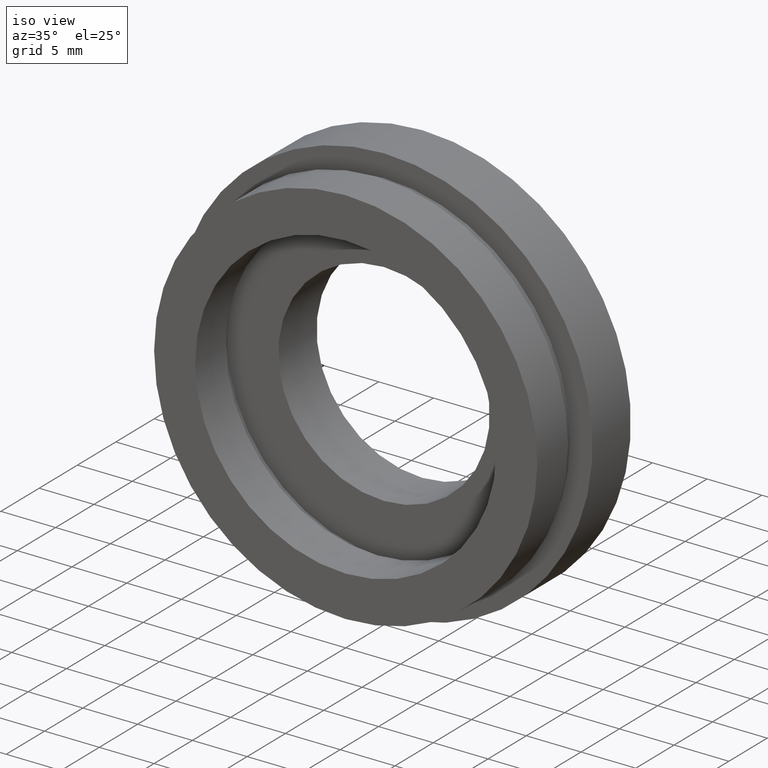
[diagram: clean part render]
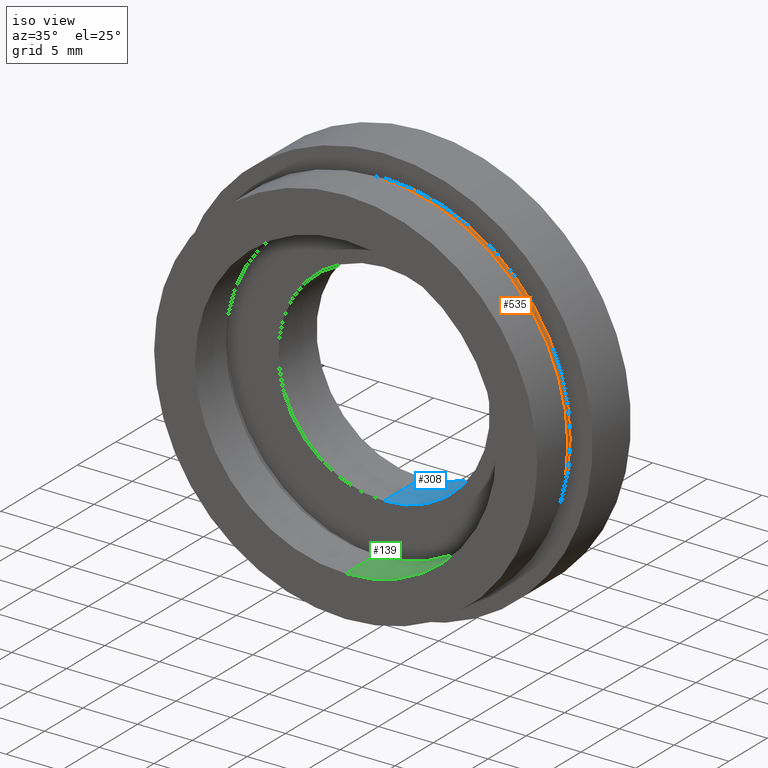
[diagram: same view with three faces highlighted in distinct colors, each labeled with its STEP entity id]
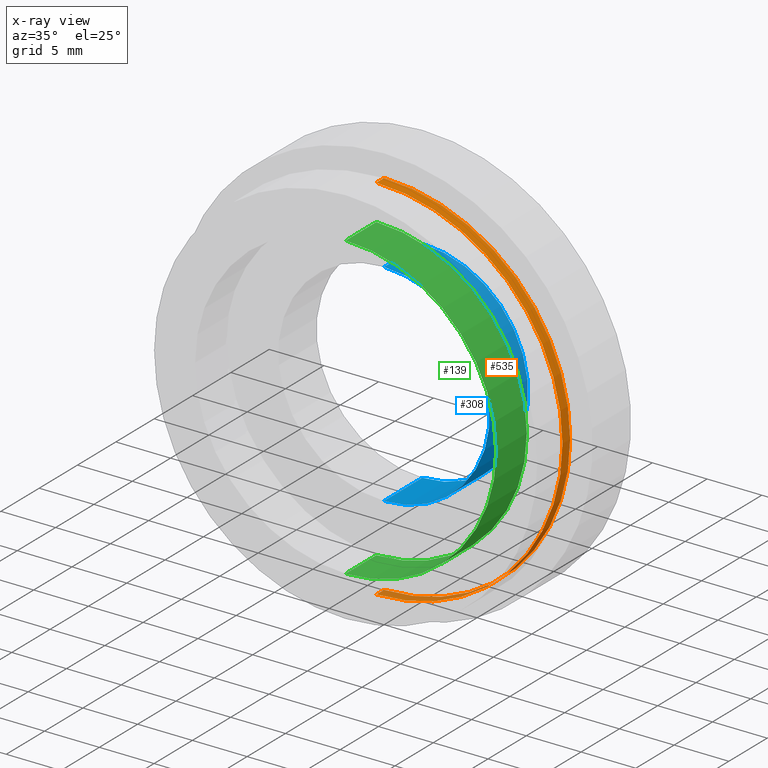
[diagram: x-ray of the same camera — body ghosted, the three highlighted faces saturated]
A machine part, iso view with three faces highlighted in distinct colors.
The next image is the same camera in x-ray (body ghosted, the three faces saturated) — at least one of them is partly hidden behind the body in this view.
Their STEP definitions:

[orange] entity #535 — the highlighted cylindrical surface (partial cylindrical patch) has radius 17 mm, axis along (-0, 1, -0).
#9 = ORIENTED_EDGE ( 'NONE', *, *, #530, .F. ) ;
#29 = EDGE_CURVE ( 'NONE', #175, #437, #335, .T. ) ;
#57 = AXIS2_PLACEMENT_3D ( 'NONE', #212, #292, #474 ) ;
#67 = CYLINDRICAL_SURFACE ( 'NONE', #447, 17.00000000000000000 ) ;
#98 = VERTEX_POINT ( 'NONE', #430 ) ;
#119 = EDGE_CURVE ( 'NONE', #175, #365, #510, .T. ) ;
#132 = DIRECTION ( 'NONE',  ( -0.0000000000000000000, 1.000000000000000000, -0.0000000000000000000 ) ) ;
#152 = ORIENTED_EDGE ( 'NONE', *, *, #29, .T. ) ;
#163 = FACE_OUTER_BOUND ( 'NONE', #435, .T. ) ;
#166 = DIRECTION ( 'NONE',  ( -0.0000000000000000000, 1.000000000000000000, -0.0000000000000000000 ) ) ;
#172 = ORIENTED_EDGE ( 'NONE', *, *, #119, .F. ) ;
#175 = VERTEX_POINT ( 'NONE', #394 ) ;
#184 = CARTESIAN_POINT ( 'NONE',  ( 0.0000000000000000000, 5.000000000000000900, 0.0000000000000000000 ) ) ;
#194 = CIRCLE ( 'NONE', #468, 17.00000000000000000 ) ;
#199 = CARTESIAN_POINT ( 'NONE',  ( 0.0000000000000000000, 5.000000000000000900, 17.00000000000000000 ) ) ;
#212 = CARTESIAN_POINT ( 'NONE',  ( 0.0000000000000000000, 4.000000000000000000, 0.0000000000000000000 ) ) ;
#219 = DIRECTION ( 'NONE',  ( -0.0000000000000000000, 1.000000000000000000, -0.0000000000000000000 ) ) ;
#242 = CARTESIAN_POINT ( 'NONE',  ( 0.0000000000000000000, 13.74468085106383300, 17.00000000000000000 ) ) ;
#265 = VECTOR ( 'NONE', #582, 1000.000000000000000 ) ;
#292 = DIRECTION ( 'NONE',  ( -0.0000000000000000000, 1.000000000000000000, -0.0000000000000000000 ) ) ;
#311 = DIRECTION ( 'NONE',  ( 0.0000000000000000000, 0.0000000000000000000, 1.000000000000000000 ) ) ;
#335 = CIRCLE ( 'NONE', #57, 17.00000000000000000 ) ;
#365 = VERTEX_POINT ( 'NONE', #199 ) ;
#394 = CARTESIAN_POINT ( 'NONE',  ( 0.0000000000000000000, 4.000000000000000000, 17.00000000000000000 ) ) ;
#422 = CARTESIAN_POINT ( 'NONE',  ( 2.081899558550500300E-015, 4.000000000000000000, -17.00000000000000000 ) ) ;
#430 = CARTESIAN_POINT ( 'NONE',  ( 2.081899558550500300E-015, 5.000000000000000900, -17.00000000000000000 ) ) ;
#435 = EDGE_LOOP ( 'NONE', ( #152, #498, #9, #172 ) ) ;
#436 = LINE ( 'NONE', #572, #265 ) ;
#437 = VERTEX_POINT ( 'NONE', #422 ) ;
#447 = AXIS2_PLACEMENT_3D ( 'NONE', #601, #166, #449 ) ;
#449 = DIRECTION ( 'NONE',  ( 0.0000000000000000000, 0.0000000000000000000, 1.000000000000000000 ) ) ;
#468 = AXIS2_PLACEMENT_3D ( 'NONE', #184, #219, #311 ) ;
#474 = DIRECTION ( 'NONE',  ( 0.0000000000000000000, 0.0000000000000000000, 1.000000000000000000 ) ) ;
#498 = ORIENTED_EDGE ( 'NONE', *, *, #569, .T. ) ;
#510 = LINE ( 'NONE', #242, #511 ) ;
#511 = VECTOR ( 'NONE', #132, 1000.000000000000000 ) ;
#530 = EDGE_CURVE ( 'NONE', #365, #98, #194, .T. ) ;
#535 = ADVANCED_FACE ( 'NONE', ( #163 ), #67, .T. ) ;
#569 = EDGE_CURVE ( 'NONE', #437, #98, #436, .T. ) ;
#572 = CARTESIAN_POINT ( 'NONE',  ( 2.081899558550500300E-015, 13.74468085106383300, -17.00000000000000000 ) ) ;
#582 = DIRECTION ( 'NONE',  ( -0.0000000000000000000, 1.000000000000000000, -0.0000000000000000000 ) ) ;
#601 = CARTESIAN_POINT ( 'NONE',  ( 0.0000000000000000000, 13.74468085106383300, 0.0000000000000000000 ) ) ;

[blue] entity #308 — the highlighted cylindrical surface (partial cylindrical patch) has radius 9.66 mm, axis along (-0, 1, -0).
#17 = CARTESIAN_POINT ( 'NONE',  ( 1.183008807976343300E-015, 9.999999999999998200, -9.660000000000000100 ) ) ;
#18 = ORIENTED_EDGE ( 'NONE', *, *, #372, .F. ) ;
#22 = CIRCLE ( 'NONE', #387, 9.660000000000000100 ) ;
#50 = CARTESIAN_POINT ( 'NONE',  ( 1.183008807976343300E-015, 13.74468085106383300, -9.660000000000000100 ) ) ;
#64 = CARTESIAN_POINT ( 'NONE',  ( 1.183008807976343300E-015, 5.000000000000000900, -9.660000000000000100 ) ) ;
#84 = DIRECTION ( 'NONE',  ( -0.0000000000000000000, 1.000000000000000000, -0.0000000000000000000 ) ) ;
#94 = CARTESIAN_POINT ( 'NONE',  ( 0.0000000000000000000, 5.000000000000000900, 0.0000000000000000000 ) ) ;
#96 = DIRECTION ( 'NONE',  ( 0.0000000000000000000, 0.0000000000000000000, 1.000000000000000000 ) ) ;
#104 = EDGE_CURVE ( 'NONE', #215, #574, #571, .T. ) ;
#171 = AXIS2_PLACEMENT_3D ( 'NONE', #94, #608, #403 ) ;
#182 = DIRECTION ( 'NONE',  ( 0.0000000000000000000, 0.0000000000000000000, 1.000000000000000000 ) ) ;
#215 = VERTEX_POINT ( 'NONE', #592 ) ;
#233 = AXIS2_PLACEMENT_3D ( 'NONE', #586, #330, #96 ) ;
#258 = LINE ( 'NONE', #50, #556 ) ;
#276 = ORIENTED_EDGE ( 'NONE', *, *, #597, .F. ) ;
#288 = VERTEX_POINT ( 'NONE', #17 ) ;
#308 = ADVANCED_FACE ( 'NONE', ( #376 ), #470, .F. ) ;
#330 = DIRECTION ( 'NONE',  ( -0.0000000000000000000, 1.000000000000000000, -0.0000000000000000000 ) ) ;
#351 = ORIENTED_EDGE ( 'NONE', *, *, #453, .T. ) ;
#363 = VERTEX_POINT ( 'NONE', #64 ) ;
#372 = EDGE_CURVE ( 'NONE', #363, #288, #258, .T. ) ;
#373 = ORIENTED_EDGE ( 'NONE', *, *, #104, .T. ) ;
#376 = FACE_OUTER_BOUND ( 'NONE', #588, .T. ) ;
#383 = CARTESIAN_POINT ( 'NONE',  ( 0.0000000000000000000, 13.74468085106383300, 9.660000000000000100 ) ) ;
#387 = AXIS2_PLACEMENT_3D ( 'NONE', #485, #460, #182 ) ;
#403 = DIRECTION ( 'NONE',  ( 0.0000000000000000000, 0.0000000000000000000, 1.000000000000000000 ) ) ;
#453 = EDGE_CURVE ( 'NONE', #574, #288, #22, .T. ) ;
#460 = DIRECTION ( 'NONE',  ( -0.0000000000000000000, 1.000000000000000000, -0.0000000000000000000 ) ) ;
#464 = DIRECTION ( 'NONE',  ( -0.0000000000000000000, 1.000000000000000000, -0.0000000000000000000 ) ) ;
#470 = CYLINDRICAL_SURFACE ( 'NONE', #233, 9.660000000000000100 ) ;
#482 = CIRCLE ( 'NONE', #171, 9.660000000000000100 ) ;
#485 = CARTESIAN_POINT ( 'NONE',  ( 0.0000000000000000000, 9.999999999999998200, 0.0000000000000000000 ) ) ;
#522 = VECTOR ( 'NONE', #84, 1000.000000000000000 ) ;
#556 = VECTOR ( 'NONE', #464, 1000.000000000000000 ) ;
#571 = LINE ( 'NONE', #383, #522 ) ;
#574 = VERTEX_POINT ( 'NONE', #610 ) ;
#586 = CARTESIAN_POINT ( 'NONE',  ( 0.0000000000000000000, 13.74468085106383300, 0.0000000000000000000 ) ) ;
#588 = EDGE_LOOP ( 'NONE', ( #18, #276, #373, #351 ) ) ;
#592 = CARTESIAN_POINT ( 'NONE',  ( 0.0000000000000000000, 5.000000000000000900, 9.660000000000000100 ) ) ;
#597 = EDGE_CURVE ( 'NONE', #215, #363, #482, .T. ) ;
#608 = DIRECTION ( 'NONE',  ( -0.0000000000000000000, 1.000000000000000000, -0.0000000000000000000 ) ) ;
#610 = CARTESIAN_POINT ( 'NONE',  ( 0.0000000000000000000, 9.999999999999998200, 9.660000000000000100 ) ) ;

[green] entity #139 — the highlighted cylindrical surface (partial cylindrical patch) has radius 13.75 mm, axis along (-0, 1, -0).
#5 = DIRECTION ( 'NONE',  ( -0.0000000000000000000, 1.000000000000000000, -0.0000000000000000000 ) ) ;
#60 = CARTESIAN_POINT ( 'NONE',  ( 0.0000000000000000000, 13.74468085106383300, 13.75000000000000200 ) ) ;
#78 = CARTESIAN_POINT ( 'NONE',  ( 1.683889348827611000E-015, 13.74468085106383300, -13.75000000000000200 ) ) ;
#90 = ORIENTED_EDGE ( 'NONE', *, *, #358, .T. ) ;
#100 = AXIS2_PLACEMENT_3D ( 'NONE', #565, #340, #277 ) ;
#122 = CIRCLE ( 'NONE', #269, 13.75000000000000200 ) ;
#139 = ADVANCED_FACE ( 'NONE', ( #521 ), #604, .F. ) ;
#164 = DIRECTION ( 'NONE',  ( -0.0000000000000000000, 1.000000000000000000, -0.0000000000000000000 ) ) ;
#205 = LINE ( 'NONE', #78, #448 ) ;
#229 = LINE ( 'NONE', #60, #321 ) ;
#253 = VERTEX_POINT ( 'NONE', #596 ) ;
#269 = AXIS2_PLACEMENT_3D ( 'NONE', #357, #164, #411 ) ;
#277 = DIRECTION ( 'NONE',  ( 0.0000000000000000000, 0.0000000000000000000, 1.000000000000000000 ) ) ;
#283 = VERTEX_POINT ( 'NONE', #334 ) ;
#290 = DIRECTION ( 'NONE',  ( -0.0000000000000000000, 1.000000000000000000, -0.0000000000000000000 ) ) ;
#296 = CARTESIAN_POINT ( 'NONE',  ( 0.0000000000000000000, -1.734723475976807100E-015, 13.75000000000000000 ) ) ;
#314 = CIRCLE ( 'NONE', #438, 13.75000000000000000 ) ;
#321 = VECTOR ( 'NONE', #359, 1000.000000000000000 ) ;
#334 = CARTESIAN_POINT ( 'NONE',  ( 0.0000000000000000000, 4.000000000000000000, 13.75000000000000200 ) ) ;
#340 = DIRECTION ( 'NONE',  ( -0.0000000000000000000, 1.000000000000000000, -0.0000000000000000000 ) ) ;
#350 = ORIENTED_EDGE ( 'NONE', *, *, #421, .F. ) ;
#355 = ORIENTED_EDGE ( 'NONE', *, *, #542, .F. ) ;
#357 = CARTESIAN_POINT ( 'NONE',  ( 0.0000000000000000000, 4.000000000000000000, 0.0000000000000000000 ) ) ;
#358 = EDGE_CURVE ( 'NONE', #283, #253, #122, .T. ) ;
#359 = DIRECTION ( 'NONE',  ( -0.0000000000000000000, 1.000000000000000000, -0.0000000000000000000 ) ) ;
#411 = DIRECTION ( 'NONE',  ( 0.0000000000000000000, 0.0000000000000000000, 1.000000000000000000 ) ) ;
#421 = EDGE_CURVE ( 'NONE', #500, #253, #205, .T. ) ;
#438 = AXIS2_PLACEMENT_3D ( 'NONE', #516, #290, #563 ) ;
#448 = VECTOR ( 'NONE', #5, 1000.000000000000000 ) ;
#479 = EDGE_CURVE ( 'NONE', #489, #283, #229, .T. ) ;
#489 = VERTEX_POINT ( 'NONE', #296 ) ;
#499 = EDGE_LOOP ( 'NONE', ( #350, #355, #526, #90 ) ) ;
#500 = VERTEX_POINT ( 'NONE', #618 ) ;
#516 = CARTESIAN_POINT ( 'NONE',  ( 0.0000000000000000000, -1.734723475976807100E-015, 0.0000000000000000000 ) ) ;
#521 = FACE_OUTER_BOUND ( 'NONE', #499, .T. ) ;
#526 = ORIENTED_EDGE ( 'NONE', *, *, #479, .T. ) ;
#542 = EDGE_CURVE ( 'NONE', #489, #500, #314, .T. ) ;
#563 = DIRECTION ( 'NONE',  ( 0.0000000000000000000, 0.0000000000000000000, 1.000000000000000000 ) ) ;
#565 = CARTESIAN_POINT ( 'NONE',  ( 0.0000000000000000000, 13.74468085106383300, 0.0000000000000000000 ) ) ;
#596 = CARTESIAN_POINT ( 'NONE',  ( 1.683889348827611000E-015, 4.000000000000000000, -13.75000000000000200 ) ) ;
#604 = CYLINDRICAL_SURFACE ( 'NONE', #100, 13.75000000000000200 ) ;
#618 = CARTESIAN_POINT ( 'NONE',  ( 1.683889348827610900E-015, -1.734723475976807100E-015, -13.75000000000000000 ) ) ;